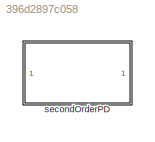
MODEL slx_396d2897c058
KIND library
CONFIG AbsTol = auto
CONFIG EnableMultiTasking = off
CONFIG FixedStep = auto
CONFIG MaxStep = auto
CONFIG MinStep = auto
CONFIG RelTol = 1e-3
CONFIG SampleTimeConstraint = Unconstrained
CONFIG SolverName = VariableStepAuto
CONFIG StartTime = 0.0
CONFIG StopTime = 10.0
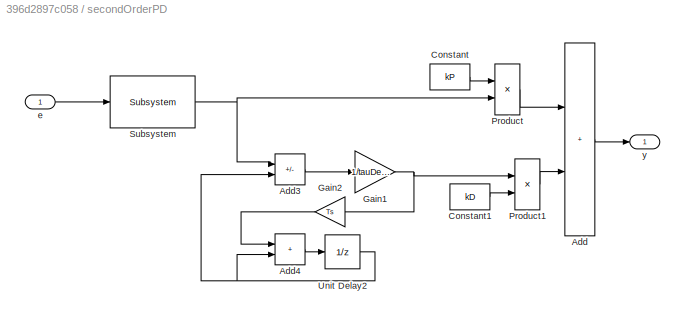
BLOCK [SubSystem] secondOrderPD
  Ports = [1, 1]
  RequestExecContextInheritance = off
BLOCK [Sum] secondOrderPD/Add
  IconShape = rectangular
  Ports = [2, 1]
BLOCK [Sum] secondOrderPD/Add3
  IconShape = rectangular
  Inputs = +-
  Ports = [2, 1]
BLOCK [Sum] secondOrderPD/Add4
  IconShape = rectangular
  Ports = [2, 1]
BLOCK [Constant] secondOrderPD/Constant
  Value = kP
BLOCK [Constant] secondOrderPD/Constant1
  Value = kD
BLOCK [Gain] secondOrderPD/Gain1
  Gain = 1/tauDerivative
BLOCK [Gain] secondOrderPD/Gain2
  Gain = Ts
BLOCK [Product] secondOrderPD/Product
  Ports = [2, 1]
BLOCK [Product] secondOrderPD/Product1
  Ports = [2, 1]
BLOCK [Reference] secondOrderPD/Subsystem  REF=discreteFilter_ul/Subsystem
  Ports = [1, 1]
  SourceBlock = discreteFilter_ul/Subsystem
BLOCK [UnitDelay] secondOrderPD/Unit Delay2
  HasFrameUpgradeWarning = on
  SampleTime = -1
BLOCK [Inport] secondOrderPD/e
BLOCK [Outport] secondOrderPD/y
LINE secondOrderPD/Add3:1 -> secondOrderPD/Gain1:1
LINE secondOrderPD/Add4:1 -> secondOrderPD/Unit Delay2:1
LINE secondOrderPD/Add:1 -> secondOrderPD/y:1
LINE secondOrderPD/Constant1:1 -> secondOrderPD/Product1:2
LINE secondOrderPD/Constant:1 -> secondOrderPD/Product:1
NET secondOrderPD/Gain1:1 -> secondOrderPD/Gain2:1, secondOrderPD/Product1:1
LINE secondOrderPD/Gain2:1 -> secondOrderPD/Add4:1
LINE secondOrderPD/Product1:1 -> secondOrderPD/Add:2
LINE secondOrderPD/Product:1 -> secondOrderPD/Add:1
NET secondOrderPD/Subsystem:1 -> secondOrderPD/Add3:1, secondOrderPD/Product:2
NET secondOrderPD/Unit Delay2:1 -> secondOrderPD/Add3:2, secondOrderPD/Add4:2
LINE secondOrderPD/e:1 -> secondOrderPD/Subsystem:1
note: NET lines group one-source signal fan-out (src -> all destinations, sorted); 1:1 wires keep LINE
